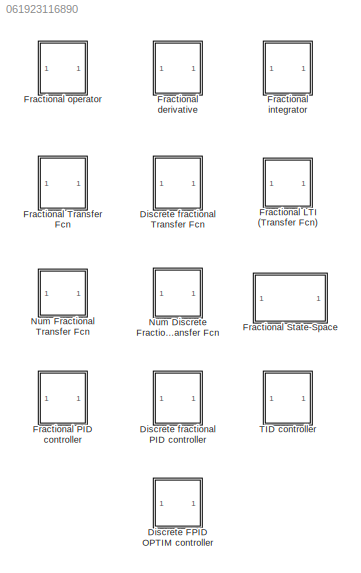
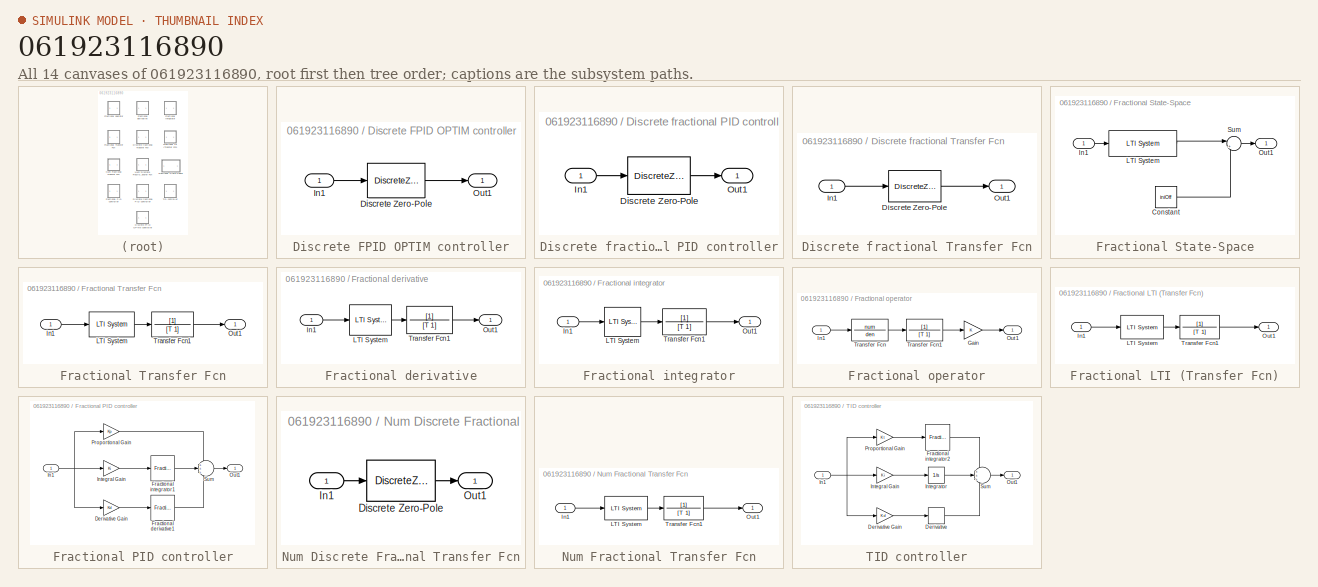
[diagram: thumbnail index - all 14 canvases of the model, root first then tree order]
MODEL slx_061923116890
KIND library
BLOCK [SubSystem] Discrete FPID OPTIM controller
  Ports = [1, 1]
  RequestExecContextInheritance = off
BLOCK [DiscreteZeroPole] Discrete FPID OPTIM controller/Discrete Zero-Pole
  Gain = dfraczpk.k
  Poles = dfraczpk.p{1}
  SampleTime = ts
  Zeros = dfraczpk.z{1}
BLOCK [Inport] Discrete FPID OPTIM controller/In1
  IconDisplay = Port number
BLOCK [Outport] Discrete FPID OPTIM controller/Out1
  IconDisplay = Port number
BLOCK [SubSystem] Discrete fractional PID controller
  Ports = [1, 1]
  RequestExecContextInheritance = off
BLOCK [DiscreteZeroPole] Discrete fractional PID controller/Discrete Zero-Pole
  Gain = dfraczpk.k
  Poles = dfraczpk.p{1}
  SampleTime = ts
  Zeros = dfraczpk.z{1}
BLOCK [Inport] Discrete fractional PID controller/In1
  IconDisplay = Port number
BLOCK [Outport] Discrete fractional PID controller/Out1
  IconDisplay = Port number
BLOCK [SubSystem] Discrete fractional Transfer Fcn
  Ports = [1, 1]
  RequestExecContextInheritance = off
BLOCK [DiscreteZeroPole] Discrete fractional Transfer Fcn/Discrete Zero-Pole
  Gain = dfraczpk.k
  Poles = dfraczpk.p{1}
  SampleTime = ts
  Zeros = dfraczpk.z{1}
BLOCK [Inport] Discrete fractional Transfer Fcn/In1
  IconDisplay = Port number
BLOCK [Outport] Discrete fractional Transfer Fcn/Out1
  IconDisplay = Port number
BLOCK [SubSystem] Fractional LTI (Transfer Fcn)
  Ports = [1, 1]
  RequestExecContextInheritance = off
BLOCK [Inport] Fractional LTI (Transfer Fcn)/In1
  IconDisplay = Port number
BLOCK [Reference] Fractional LTI (Transfer Fcn)/LTI System  REF=cstblocks/LTI System
  IC = []
  Ports = [1, 1]
  SourceBlock = cstblocks/LTI System
  SourceType = LTI Block
  sys = fractf
BLOCK [Outport] Fractional LTI (Transfer Fcn)/Out1
  IconDisplay = Port number
BLOCK [TransferFcn] Fractional LTI (Transfer Fcn)/Transfer Fcn1
  Denominator = [T 1]
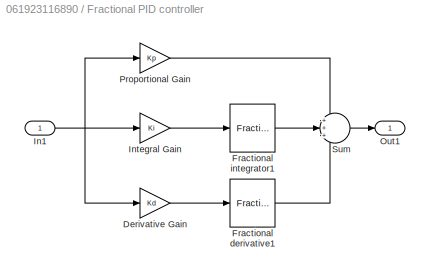
BLOCK [SubSystem] Fractional PID controller
  Ports = [1, 1]
  RequestExecContextInheritance = off
BLOCK [Gain] Fractional PID controller/Derivative Gain
  Gain = Kd
  OutDataTypeStr = Inherit: Inherit via internal rule
  ParamDataTypeStr = Inherit: Inherit via internal rule
  SaturateOnIntegerOverflow = off
BLOCK [Reference] Fractional PID controller/Fractional derivative1  REF=fod/Fractional  (lib defined in slx_5cb2d42c7bef)
derivative
  Ports = [1, 1]
  SourceBlock = fod/Fractional\nderivative
  SourceType = Fractional derivative
  gam = mic
  n = N
  nFod = off
  ww = [wb; wh]
BLOCK [Reference] Fractional PID controller/Fractional integrator1  REF=fod/Fractional  (lib defined in slx_5cb2d42c7bef)
integrator
  Ports = [1, 1]
  SourceBlock = fod/Fractional\nintegrator
  SourceType = Fractional integrator
  gam = lambda
  n = N
  nFod = off
  ww = [wb; wh]
BLOCK [Inport] Fractional PID controller/In1
  IconDisplay = Port number
BLOCK [Gain] Fractional PID controller/Integral Gain
  Gain = Ki
  OutDataTypeStr = Inherit: Inherit via internal rule
  ParamDataTypeStr = Inherit: Inherit via internal rule
  SaturateOnIntegerOverflow = off
BLOCK [Outport] Fractional PID controller/Out1
  IconDisplay = Port number
BLOCK [Gain] Fractional PID controller/Proportional Gain
  Gain = Kp
  OutDataTypeStr = Inherit: Inherit via internal rule
  ParamDataTypeStr = Inherit: Inherit via internal rule
  SaturateOnIntegerOverflow = off
BLOCK [Sum] Fractional PID controller/Sum
  IconShape = round
  Inputs = +++
  Ports = [3, 1]
BLOCK [SubSystem] Fractional State-Space
  Ports = [1, 1]
  RequestExecContextInheritance = off
BLOCK [Constant] Fractional State-Space/Constant
  Value = iniOff
BLOCK [Inport] Fractional State-Space/In1
  IconDisplay = Port number
BLOCK [Reference] Fractional State-Space/LTI System  REF=cstblocks/LTI System
  IC = []
  Ports = [1, 1]
  SourceBlock = cstblocks/LTI System
  SourceType = LTI Block
  sys = myLtiApprox
BLOCK [Outport] Fractional State-Space/Out1
  IconDisplay = Port number
BLOCK [Sum] Fractional State-Space/Sum
  IconShape = round
  InputSameDT = off
  Inputs = |++
  OutDataTypeStr = Inherit: Inherit via internal rule
  Ports = [2, 1]
  SaturateOnIntegerOverflow = off
BLOCK [SubSystem] Fractional Transfer Fcn
  Description = Fractional LTI system transfer function
  Ports = [1, 1]
  RequestExecContextInheritance = off
  Tag = Fractional Transfer Fcn
BLOCK [Inport] Fractional Transfer Fcn/In1
  IconDisplay = Port number
BLOCK [Reference] Fractional Transfer Fcn/LTI System  REF=cstblocks/LTI System
  IC = x0
  Ports = [1, 1]
  SourceBlock = cstblocks/LTI System
  SourceType = LTI Block
  sys = fractf
BLOCK [Outport] Fractional Transfer Fcn/Out1
  IconDisplay = Port number
BLOCK [TransferFcn] Fractional Transfer Fcn/Transfer Fcn1
  Denominator = [T 1]
BLOCK [SubSystem] Fractional derivative
  Ports = [1, 1]
  RequestExecContextInheritance = off
BLOCK [Inport] Fractional derivative/In1
  IconDisplay = Port number
BLOCK [Reference] Fractional derivative/LTI System  REF=cstblocks/LTI System
  IC = []
  Ports = [1, 1]
  SourceBlock = cstblocks/LTI System
  SourceType = LTI Block
  sys = G1
BLOCK [Outport] Fractional derivative/Out1
  IconDisplay = Port number
BLOCK [TransferFcn] Fractional derivative/Transfer Fcn1
  Denominator = [T 1]
BLOCK [SubSystem] Fractional integrator
  Ports = [1, 1]
  RequestExecContextInheritance = off
BLOCK [Inport] Fractional integrator/In1
  IconDisplay = Port number
BLOCK [Reference] Fractional integrator/LTI System  REF=cstblocks/LTI System
  IC = x0
  Ports = [1, 1]
  SourceBlock = cstblocks/LTI System
  SourceType = LTI Block
  sys = G1
BLOCK [Outport] Fractional integrator/Out1
  IconDisplay = Port number
BLOCK [TransferFcn] Fractional integrator/Transfer Fcn1
  Denominator = [T 1]
BLOCK [SubSystem] Fractional operator
  Ports = [1, 1]
  RequestExecContextInheritance = off
  Tag = Fractional operator
BLOCK [Gain] Fractional operator/Gain
  Gain = K
  OutDataTypeStr = Inherit: Inherit via internal rule
  ParamDataTypeStr = Inherit: Inherit via internal rule
  SaturateOnIntegerOverflow = off
BLOCK [Inport] Fractional operator/In1
  IconDisplay = Port number
BLOCK [Outport] Fractional operator/Out1
  IconDisplay = Port number
BLOCK [TransferFcn] Fractional operator/Transfer Fcn
  Denominator = den
  Numerator = num
BLOCK [TransferFcn] Fractional operator/Transfer Fcn1
  Denominator = [T 1]
BLOCK [SubSystem] Num Discrete Fractional Transfer Fcn
  Ports = [1, 1]
  RequestExecContextInheritance = off
BLOCK [DiscreteZeroPole] Num Discrete Fractional Transfer Fcn/Discrete Zero-Pole
  Gain = dfraczpk.k
  Poles = dfraczpk.p{1}
  SampleTime = ts
  Zeros = dfraczpk.z{1}
BLOCK [Inport] Num Discrete Fractional Transfer Fcn/In1
  IconDisplay = Port number
BLOCK [Outport] Num Discrete Fractional Transfer Fcn/Out1
  IconDisplay = Port number
BLOCK [SubSystem] Num Fractional Transfer Fcn
  Ports = [1, 1]
  RequestExecContextInheritance = off
BLOCK [Inport] Num Fractional Transfer Fcn/In1
  IconDisplay = Port number
BLOCK [Reference] Num Fractional Transfer Fcn/LTI System  REF=cstblocks/LTI System
  IC = []
  Ports = [1, 1]
  SourceBlock = cstblocks/LTI System
  SourceType = LTI Block
  sys = fractf
BLOCK [Outport] Num Fractional Transfer Fcn/Out1
  IconDisplay = Port number
BLOCK [TransferFcn] Num Fractional Transfer Fcn/Transfer Fcn1
  Denominator = [T 1]
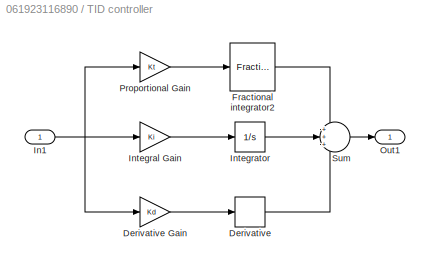
BLOCK [SubSystem] TID controller
  Ports = [1, 1]
  RequestExecContextInheritance = off
BLOCK [Derivative] TID controller/Derivative
BLOCK [Gain] TID controller/Derivative Gain
  Gain = Kd
  OutDataTypeStr = Inherit: Inherit via internal rule
  ParamDataTypeStr = Inherit: Inherit via internal rule
  SaturateOnIntegerOverflow = off
BLOCK [Reference] TID controller/Fractional integrator2  REF=fod/Fractional  (lib defined in slx_5cb2d42c7bef)
integrator
  Ports = [1, 1]
  SourceBlock = fod/Fractional\nintegrator
  SourceType = Fractional integrator
  gam = 1/K_n
  n = N
  nFod = on
  ww = [wb; wh]
BLOCK [Inport] TID controller/In1
  IconDisplay = Port number
BLOCK [Gain] TID controller/Integral Gain
  Gain = Ki
  OutDataTypeStr = Inherit: Inherit via internal rule
  ParamDataTypeStr = Inherit: Inherit via internal rule
  SaturateOnIntegerOverflow = off
BLOCK [Integrator] TID controller/Integrator
  Ports = [1, 1]
BLOCK [Outport] TID controller/Out1
  IconDisplay = Port number
BLOCK [Gain] TID controller/Proportional Gain
  Gain = Kt
  OutDataTypeStr = Inherit: Inherit via internal rule
  ParamDataTypeStr = Inherit: Inherit via internal rule
  SaturateOnIntegerOverflow = off
BLOCK [Sum] TID controller/Sum
  IconShape = round
  Inputs = +++
  Ports = [3, 1]
LINE Discrete FPID OPTIM controller/Discrete Zero-Pole:1 -> Discrete FPID OPTIM controller/Out1:1
LINE Discrete FPID OPTIM controller/In1:1 -> Discrete FPID OPTIM controller/Discrete Zero-Pole:1
LINE Discrete fractional PID controller/Discrete Zero-Pole:1 -> Discrete fractional PID controller/Out1:1
LINE Discrete fractional PID controller/In1:1 -> Discrete fractional PID controller/Discrete Zero-Pole:1
LINE Discrete fractional Transfer Fcn/Discrete Zero-Pole:1 -> Discrete fractional Transfer Fcn/Out1:1
LINE Discrete fractional Transfer Fcn/In1:1 -> Discrete fractional Transfer Fcn/Discrete Zero-Pole:1
LINE Fractional LTI (Transfer Fcn)/In1:1 -> Fractional LTI (Transfer Fcn)/LTI System:1
LINE Fractional LTI (Transfer Fcn)/LTI System:1 -> Fractional LTI (Transfer Fcn)/Transfer Fcn1:1
LINE Fractional LTI (Transfer Fcn)/Transfer Fcn1:1 -> Fractional LTI (Transfer Fcn)/Out1:1
LINE Fractional PID controller/Derivative Gain:1 -> Fractional PID controller/Fractional derivative1:1
LINE Fractional PID controller/Fractional derivative1:1 -> Fractional PID controller/Sum:3
LINE Fractional PID controller/Fractional integrator1:1 -> Fractional PID controller/Sum:2
NET Fractional PID controller/In1:1 -> Fractional PID controller/Derivative Gain:1, Fractional PID controller/Integral Gain:1, Fractional PID controller/Proportional Gain:1
LINE Fractional PID controller/Integral Gain:1 -> Fractional PID controller/Fractional integrator1:1
LINE Fractional PID controller/Proportional Gain:1 -> Fractional PID controller/Sum:1
LINE Fractional PID controller/Sum:1 -> Fractional PID controller/Out1:1
LINE Fractional State-Space/Constant:1 -> Fractional State-Space/Sum:2
LINE Fractional State-Space/In1:1 -> Fractional State-Space/LTI System:1
LINE Fractional State-Space/LTI System:1 -> Fractional State-Space/Sum:1
LINE Fractional State-Space/Sum:1 -> Fractional State-Space/Out1:1
LINE Fractional Transfer Fcn/In1:1 -> Fractional Transfer Fcn/LTI System:1
LINE Fractional Transfer Fcn/LTI System:1 -> Fractional Transfer Fcn/Transfer Fcn1:1
LINE Fractional Transfer Fcn/Transfer Fcn1:1 -> Fractional Transfer Fcn/Out1:1
LINE Fractional derivative/In1:1 -> Fractional derivative/LTI System:1
LINE Fractional derivative/LTI System:1 -> Fractional derivative/Transfer Fcn1:1
LINE Fractional derivative/Transfer Fcn1:1 -> Fractional derivative/Out1:1
LINE Fractional integrator/In1:1 -> Fractional integrator/LTI System:1
LINE Fractional integrator/LTI System:1 -> Fractional integrator/Transfer Fcn1:1
LINE Fractional integrator/Transfer Fcn1:1 -> Fractional integrator/Out1:1
LINE Fractional operator/Gain:1 -> Fractional operator/Out1:1
LINE Fractional operator/In1:1 -> Fractional operator/Transfer Fcn:1
LINE Fractional operator/Transfer Fcn1:1 -> Fractional operator/Gain:1
LINE Fractional operator/Transfer Fcn:1 -> Fractional operator/Transfer Fcn1:1
LINE Num Discrete Fractional Transfer Fcn/Discrete Zero-Pole:1 -> Num Discrete Fractional Transfer Fcn/Out1:1
LINE Num Discrete Fractional Transfer Fcn/In1:1 -> Num Discrete Fractional Transfer Fcn/Discrete Zero-Pole:1
LINE Num Fractional Transfer Fcn/In1:1 -> Num Fractional Transfer Fcn/LTI System:1
LINE Num Fractional Transfer Fcn/LTI System:1 -> Num Fractional Transfer Fcn/Transfer Fcn1:1
LINE Num Fractional Transfer Fcn/Transfer Fcn1:1 -> Num Fractional Transfer Fcn/Out1:1
LINE TID controller/Derivative Gain:1 -> TID controller/Derivative:1
LINE TID controller/Derivative:1 -> TID controller/Sum:3
LINE TID controller/Fractional integrator2:1 -> TID controller/Sum:1
NET TID controller/In1:1 -> TID controller/Derivative Gain:1, TID controller/Integral Gain:1, TID controller/Proportional Gain:1
LINE TID controller/Integral Gain:1 -> TID controller/Integrator:1
LINE TID controller/Integrator:1 -> TID controller/Sum:2
LINE TID controller/Proportional Gain:1 -> TID controller/Fractional integrator2:1
LINE TID controller/Sum:1 -> TID controller/Out1:1
note: NET lines group one-source signal fan-out (src -> all destinations, sorted); 1:1 wires keep LINE
